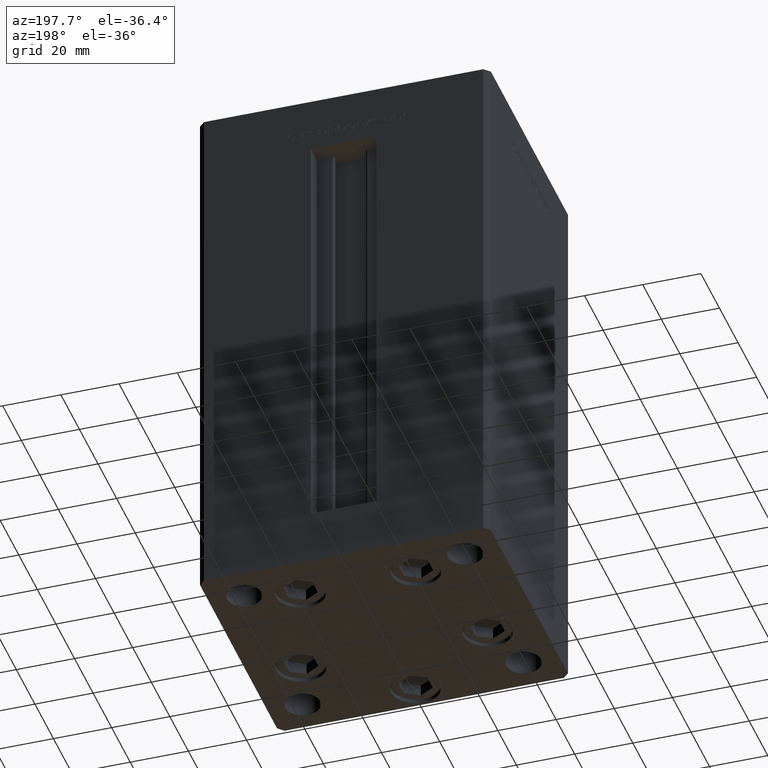
[diagram: clean part render]
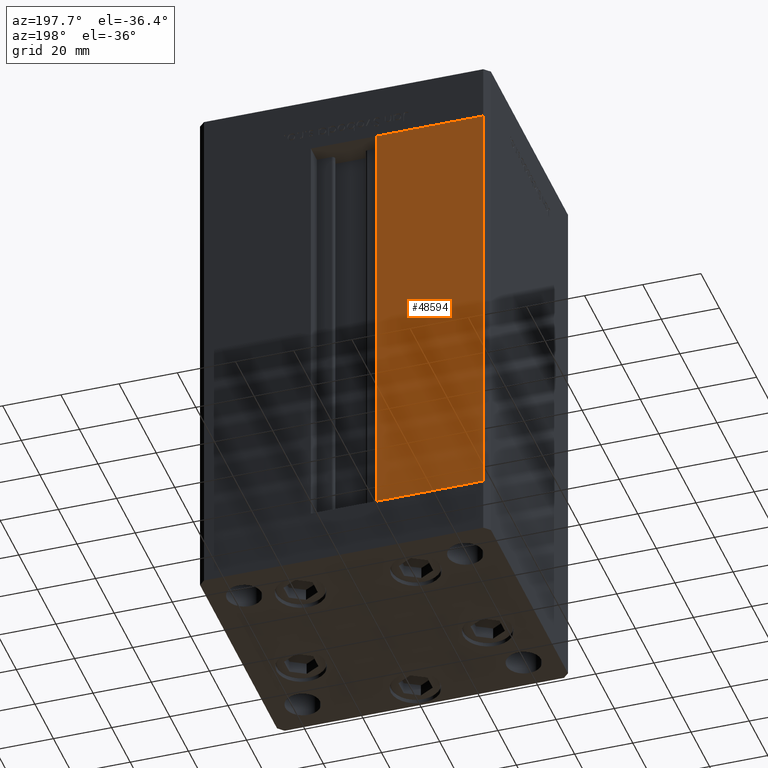
[diagram: same view with one face highlighted and labeled with its STEP entity id]
A machine part, auxiliary view. The second image highlights one B-rep face of the part: STEP entity #48594.
In plain terms, the highlighted planar face has unit normal (0, -1, 0).
Its self-contained STEP definition (entity closure, byte-faithful):
#911 = VECTOR ( 'NONE', #19278, 1000.000000000000000 ) ;
#1193 = PLANE ( 'NONE',  #31283 ) ;
#1295 = CARTESIAN_POINT ( 'NONE',  ( -48.00000000000000711, 43.50000000000000000, 148.5000000000000000 ) ) ;
#1708 = DIRECTION ( 'NONE',  ( 0.000000000000000000, -1.000000000000000000, 0.000000000000000000 ) ) ;
#3200 = CARTESIAN_POINT ( 'NONE',  ( -11.24999999999999822, 43.50000000000000000, 148.5000000000000000 ) ) ;
#4549 = CARTESIAN_POINT ( 'NONE',  ( -11.24999999999999822, 43.50000000000000000, 0.000000000000000000 ) ) ;
#5282 = CARTESIAN_POINT ( 'NONE',  ( -11.24999999999999822, 43.50000000000000000, 0.000000000000000000 ) ) ;
#9021 = LINE ( 'NONE', #4549, #10109 ) ;
#10109 = VECTOR ( 'NONE', #20625, 1000.000000000000000 ) ;
#11577 = LINE ( 'NONE', #36078, #49248 ) ;
#13061 = VERTEX_POINT ( 'NONE', #30838 ) ;
#15271 = LINE ( 'NONE', #31373, #16151 ) ;
#15498 = EDGE_CURVE ( 'NONE', #38792, #33410, #9021, .T. ) ;
#16151 = VECTOR ( 'NONE', #23951, 1000.000000000000000 ) ;
#17281 = DIRECTION ( 'NONE',  ( 0.000000000000000000, -0.000000000000000000, -1.000000000000000000 ) ) ;
#18656 = ORIENTED_EDGE ( 'NONE', *, *, #46776, .T. ) ;
#19278 = DIRECTION ( 'NONE',  ( 1.000000000000000000, 0.000000000000000000, 0.000000000000000000 ) ) ;
#20625 = DIRECTION ( 'NONE',  ( -0.000000000000000000, -0.000000000000000000, 1.000000000000000000 ) ) ;
#23951 = DIRECTION ( 'NONE',  ( -1.000000000000000000, 0.000000000000000000, 0.000000000000000000 ) ) ;
#25093 = ORIENTED_EDGE ( 'NONE', *, *, #15498, .F. ) ;
#26290 = EDGE_CURVE ( 'NONE', #38792, #13061, #15271, .T. ) ;
#26463 = ORIENTED_EDGE ( 'NONE', *, *, #33629, .F. ) ;
#27554 = ORIENTED_EDGE ( 'NONE', *, *, #26290, .T. ) ;
#28558 = CARTESIAN_POINT ( 'NONE',  ( -11.24999999999999822, 43.50000000000000000, 148.5000000000000000 ) ) ;
#30838 = CARTESIAN_POINT ( 'NONE',  ( -48.00000000000000711, 43.50000000000000000, 0.000000000000000000 ) ) ;
#31283 = AXIS2_PLACEMENT_3D ( 'NONE', #42068, #1708, #17281 ) ;
#31373 = CARTESIAN_POINT ( 'NONE',  ( -11.24999999999999822, 43.50000000000000000, 0.000000000000000000 ) ) ;
#32128 = VERTEX_POINT ( 'NONE', #1295 ) ;
#33129 = FACE_OUTER_BOUND ( 'NONE', #37626, .T. ) ;
#33410 = VERTEX_POINT ( 'NONE', #28558 ) ;
#33629 = EDGE_CURVE ( 'NONE', #32128, #13061, #11577, .T. ) ;
#36078 = CARTESIAN_POINT ( 'NONE',  ( -48.00000000000000711, 43.50000000000000000, 148.5000000000000000 ) ) ;
#37626 = EDGE_LOOP ( 'NONE', ( #18656, #25093, #27554, #26463 ) ) ;
#38792 = VERTEX_POINT ( 'NONE', #5282 ) ;
#42068 = CARTESIAN_POINT ( 'NONE',  ( -11.24999999999999822, 43.50000000000000000, 148.5000000000000000 ) ) ;
#46776 = EDGE_CURVE ( 'NONE', #32128, #33410, #51224, .T. ) ;
#48594 = ADVANCED_FACE ( 'NONE', ( #33129 ), #1193, .F. ) ;
#48754 = DIRECTION ( 'NONE',  ( -0.000000000000000000, -0.000000000000000000, -1.000000000000000000 ) ) ;
#49248 = VECTOR ( 'NONE', #48754, 1000.000000000000000 ) ;
#51224 = LINE ( 'NONE', #3200, #911 ) ;